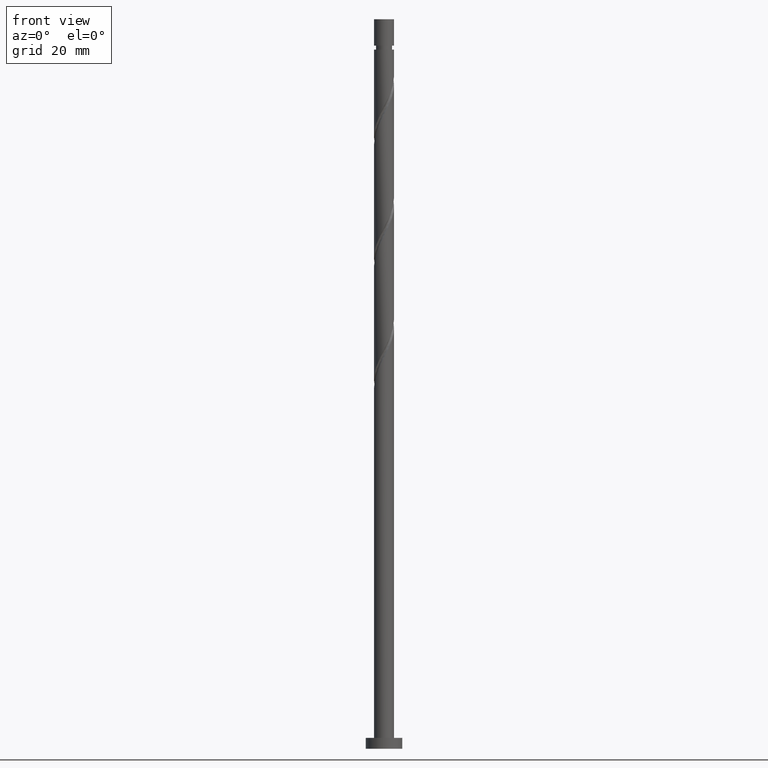
[diagram: clean part render]
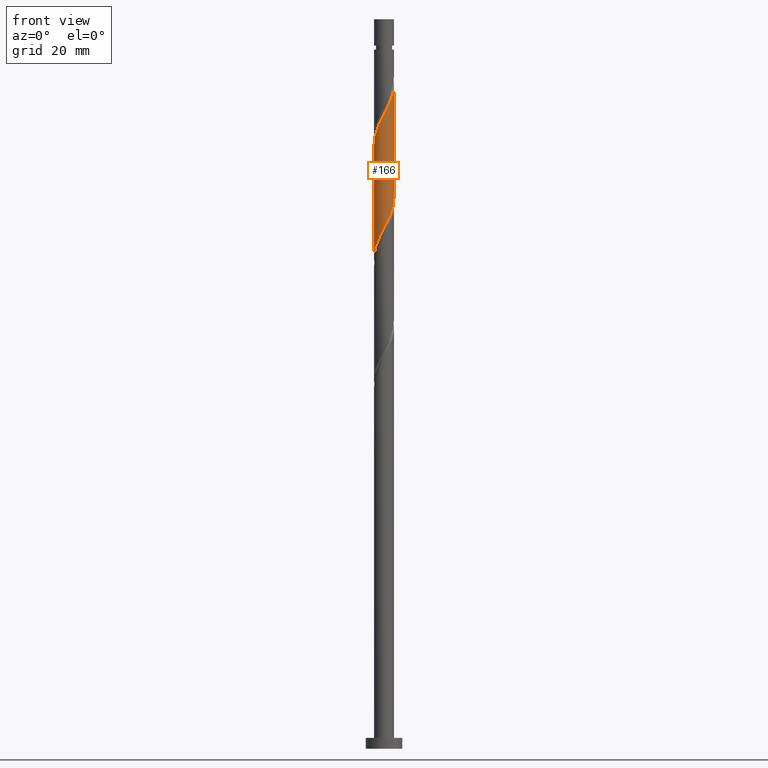
[diagram: same view with one face highlighted and labeled with its STEP entity id]
A machine part, front view. The second image highlights one B-rep face of the part: STEP entity #166.
In plain terms, the highlighted cylindrical surface (edge-blend (fillet) strip) has radius 2.75 mm, axis along (-0, -0, -1).
Its self-contained STEP definition (entity closure, byte-faithful):
#17 = CARTESIAN_POINT ( 'NONE',  ( 2.750000000000002220, -0.2763853991962788581, 150.5134467254357560 ) ) ;
#26 = CARTESIAN_POINT ( 'NONE',  ( -2.492551864551396879, -1.216865369375926598, 136.7888619949704605 ) ) ;
#34 = CARTESIAN_POINT ( 'NONE',  ( 2.060316917994740482, -1.821426418339390008, 147.2055286616372030 ) ) ;
#40 = CARTESIAN_POINT ( 'NONE',  ( -2.750000000000001332, -1.166395186602363557E-14, 134.3802064279583419 ) ) ;
#42 = CARTESIAN_POINT ( 'NONE',  ( -1.518693475112314450, -2.292612075483183354, 170.8166397727483172 ) ) ;
#48 = CARTESIAN_POINT ( 'NONE',  ( -2.695000000000005169, -0.5472430904086424963, 166.6499731060817169 ) ) ;
#84 = LINE ( 'NONE', #666, #1278 ) ;
#124 = VERTEX_POINT ( 'NONE', #1510 ) ;
#160 = VERTEX_POINT ( 'NONE', #40 ) ;
#166 = ADVANCED_FACE ( 'NONE', ( #1684 ), #195, .T. ) ;
#168 = CARTESIAN_POINT ( 'NONE',  ( 0.1924396094106092248, -2.767045919639746554, 174.2888619949704605 ) ) ;
#191 = CARTESIAN_POINT ( 'NONE',  ( 2.750000000000000888, 3.289832577596410225E-15, 151.0468730946250275 ) ) ;
#195 = CYLINDRICAL_SURFACE ( 'NONE', #309, 2.750000000000000000 ) ;
#248 = ORIENTED_EDGE ( 'NONE', *, *, #274, .T. ) ;
#274 = EDGE_CURVE ( 'NONE', #488, #160, #84, .T. ) ;
#299 = CARTESIAN_POINT ( 'NONE',  ( -2.750000000000004441, -1.428086414365705300E-15, 165.5864064508715785 ) ) ;
#302 = CARTESIAN_POINT ( 'NONE',  ( -0.9020465714066749907, -2.622954080360256679, 140.9555286616371745 ) ) ;
#308 = CARTESIAN_POINT ( 'NONE',  ( -0.1689210922673437254, -2.744807035947560259, 173.5944175505261740 ) ) ;
#309 = AXIS2_PLACEMENT_3D ( 'NONE', #616, #1536, #1253 ) ;
#312 = CARTESIAN_POINT ( 'NONE',  ( -2.722568152255369078, -0.5302817939452942886, 135.3999731060816316 ) ) ;
#321 = VERTEX_POINT ( 'NONE', #1159 ) ;
#328 =( BOUNDED_CURVE ( )  B_SPLINE_CURVE ( 2, ( #299, #1232, #48, #604, #595, #1112, #1522, #735, #42, #747, #1255, #1652, #308, #168, #1240, #618, #1539, #341, #1389, #721, #1623, #1737, #1501, #594, #816, #1339, #553 ),
 .UNSPECIFIED., .F., .T. ) 
 B_SPLINE_CURVE_WITH_KNOTS ( ( 3, 2, 2, 2, 2, 2, 2, 2, 2, 2, 2, 2, 2, 3 ),
 ( 0.5545317669814461281, 0.5625000000000000000, 0.5729166666666667407, 0.5833333333333332593, 0.5937500000000000000, 0.6041666666666667407, 0.6145833333333332593, 0.6250000000000000000, 0.6354166666666667407, 0.6458333333333332593, 0.6562500000000000000, 0.6666666666666667407, 0.6770833333333332593, 0.6795317669814460171 ),
 .UNSPECIFIED. ) 
 CURVE ( )  GEOMETRIC_REPRESENTATION_ITEM ( )  RATIONAL_B_SPLINE_CURVE ( ( 0.9062941362546527158, 0.9031415850403567980, 0.9090909090909321533, 0.9013135103398507431, 0.9090909090909321533, 0.9013135103398507431, 0.9090909090909321533, 0.9013135103398507431, 0.9090909090909321533, 0.9013135103398507431, 0.9090909090909321533, 0.9013135103398507431, 0.9090909090909321533, 0.9013135103398507431, 0.9090909090909321533, 0.9013135103398507431, 0.9090909090909321533, 0.9013135103398507431, 0.9090909090909321533, 0.9013135103398507431, 0.9090909090909321533, 0.9013135103398507431, 0.9090909090909321533, 0.9013135103398507431, 0.9090909090909321533, 0.9072628343904260984, 0.9062941362546527158 ) ) 
 REPRESENTATION_ITEM ( '' )  );
#341 = CARTESIAN_POINT ( 'NONE',  ( 1.550180550263815515, -2.300112255140790651, 177.0666397727482888 ) ) ;
#375 = DIRECTION ( 'NONE',  ( -0.000000000000000000, -0.000000000000000000, -1.000000000000000000 ) ) ;
#460 = CARTESIAN_POINT ( 'NONE',  ( 2.695000000000000284, -0.5472430904086429404, 149.9833064394149460 ) ) ;
#473 = CARTESIAN_POINT ( 'NONE',  ( -1.821426418339389341, -2.060316917994740926, 138.8721953283038602 ) ) ;
#482 = CARTESIAN_POINT ( 'NONE',  ( -2.292612075483178913, -1.518693475112311564, 137.4833064394149176 ) ) ;
#488 = VERTEX_POINT ( 'NONE', #830 ) ;
#521 =( BOUNDED_CURVE ( )  B_SPLINE_CURVE ( 2, ( #191, #17, #460, #1375, #611, #1105, #34, #880, #590, #1115, #1680, #986, #1128, #606, #1667, #302, #1675, #1503, #473, #1004, #482, #26, #1533, #312, #1010, #1383, #995 ),
 .UNSPECIFIED., .F., .T. ) 
 B_SPLINE_CURVE_WITH_KNOTS ( ( 3, 2, 2, 2, 2, 2, 2, 2, 2, 2, 2, 2, 2, 3 ),
 ( 0.5545317669814461281, 0.5625000000000000000, 0.5729166666666666297, 0.5833333333333333703, 0.5937500000000000000, 0.6041666666666666297, 0.6145833333333333703, 0.6250000000000000000, 0.6354166666666666297, 0.6458333333333333703, 0.6562500000000000000, 0.6666666666666666297, 0.6770833333333333703, 0.6795317669814462391 ),
 .UNSPECIFIED. ) 
 CURVE ( )  GEOMETRIC_REPRESENTATION_ITEM ( )  RATIONAL_B_SPLINE_CURVE ( ( 0.9062941362546469426, 0.9031415850403509138, 0.9090909090909264911, 0.9013135103398449699, 0.9090909090909264911, 0.9013135103398449699, 0.9090909090909264911, 0.9013135103398449699, 0.9090909090909264911, 0.9013135103398449699, 0.9090909090909264911, 0.9013135103398449699, 0.9090909090909264911, 0.9013135103398449699, 0.9090909090909264911, 0.9013135103398449699, 0.9090909090909264911, 0.9013135103398449699, 0.9090909090909264911, 0.9013135103398449699, 0.9090909090909264911, 0.9013135103398449699, 0.9090909090909264911, 0.9013135103398449699, 0.9090909090909264911, 0.9072628343904203252, 0.9062941362546469426 ) ) 
 REPRESENTATION_ITEM ( '' )  );
#553 = CARTESIAN_POINT ( 'NONE',  ( 2.750000000000004441, -2.841219044287791350E-16, 182.2530731175382357 ) ) ;
#590 = CARTESIAN_POINT ( 'NONE',  ( 1.518693475112310676, -2.292612075483180689, 145.8166397727482888 ) ) ;
#594 = CARTESIAN_POINT ( 'NONE',  ( 2.722568152255372631, -0.5302817939452981744, 181.2333064394149744 ) ) ;
#595 = CARTESIAN_POINT ( 'NONE',  ( -2.461533167750526552, -1.226113560835245808, 168.0388619949705173 ) ) ;
#600 = ORIENTED_EDGE ( 'NONE', *, *, #1717, .F. ) ;
#604 = CARTESIAN_POINT ( 'NONE',  ( -2.622954080360260676, -0.9020465714066742136, 167.3444175505260318 ) ) ;
#606 = CARTESIAN_POINT ( 'NONE',  ( -0.1924396094106113064, -2.767045919639743445, 142.3444175505259750 ) ) ;
#611 = CARTESIAN_POINT ( 'NONE',  ( 2.461533167750521223, -1.226113560835246474, 148.5944175505260603 ) ) ;
#616 = CARTESIAN_POINT ( 'NONE',  ( 0.000000000000000000, 0.000000000000000000, 200.0000000000000000 ) ) ;
#618 = CARTESIAN_POINT ( 'NONE',  ( 0.9020465714066741025, -2.622954080360260676, 175.6777508838593747 ) ) ;
#635 = EDGE_CURVE ( 'NONE', #321, #124, #1022, .T. ) ;
#666 = CARTESIAN_POINT ( 'NONE',  ( -2.750000000000000000, 0.000000000000000000, 200.0000000000000000 ) ) ;
#721 = CARTESIAN_POINT ( 'NONE',  ( 2.092672286414964056, -1.820521580848699195, 178.4555286616371745 ) ) ;
#735 = CARTESIAN_POINT ( 'NONE',  ( -1.820521580848699195, -2.092672286414964056, 170.1221953283038033 ) ) ;
#747 = CARTESIAN_POINT ( 'NONE',  ( -1.216865369375930817, -2.492551864551399099, 171.5110842171926890 ) ) ;
#777 = CARTESIAN_POINT ( 'NONE',  ( 2.750000000000000000, 3.367778697655221012E-16, 200.0000000000000000 ) ) ;
#816 = CARTESIAN_POINT ( 'NONE',  ( 2.744807035947560259, -0.1689210922673452520, 181.9277508838594315 ) ) ;
#830 = CARTESIAN_POINT ( 'NONE',  ( -2.750000000000004441, -1.428086414365705300E-15, 165.5864064508715785 ) ) ;
#866 = ORIENTED_EDGE ( 'NONE', *, *, #939, .F. ) ;
#880 = CARTESIAN_POINT ( 'NONE',  ( 1.820521580848694976, -2.092672286414962723, 146.5110842171926890 ) ) ;
#939 = EDGE_CURVE ( 'NONE', #488, #321, #328, .T. ) ;
#958 = ORIENTED_EDGE ( 'NONE', *, *, #635, .F. ) ;
#986 = CARTESIAN_POINT ( 'NONE',  ( 0.5302817939452937335, -2.722568152255369078, 143.7333064394148892 ) ) ;
#995 = CARTESIAN_POINT ( 'NONE',  ( -2.750000000000001332, -1.166395186602363557E-14, 134.3802064279583419 ) ) ;
#1004 = CARTESIAN_POINT ( 'NONE',  ( -2.092672286414962723, -1.820521580848694976, 138.1777508838593747 ) ) ;
#1010 = CARTESIAN_POINT ( 'NONE',  ( -2.744807035947557150, -0.1689210922673420323, 134.7055286616371461 ) ) ;
#1022 = LINE ( 'NONE', #777, #1430 ) ;
#1105 = CARTESIAN_POINT ( 'NONE',  ( 2.300112255140785766, -1.550180550263815960, 147.8999731060816316 ) ) ;
#1112 = CARTESIAN_POINT ( 'NONE',  ( -2.300112255140790207, -1.550180550263816182, 168.7333064394148892 ) ) ;
#1115 = CARTESIAN_POINT ( 'NONE',  ( 1.216865369375926598, -2.492551864551396879, 145.1221953283038602 ) ) ;
#1128 = CARTESIAN_POINT ( 'NONE',  ( 0.1689210922673411996, -2.744807035947557150, 143.0388619949705173 ) ) ;
#1159 = CARTESIAN_POINT ( 'NONE',  ( 2.750000000000004441, -2.841219044287790857E-16, 182.2530731175382357 ) ) ;
#1177 = DIRECTION ( 'NONE',  ( -0.000000000000000000, -0.000000000000000000, -1.000000000000000000 ) ) ;
#1199 = EDGE_LOOP ( 'NONE', ( #958, #866, #248, #600 ) ) ;
#1232 = CARTESIAN_POINT ( 'NONE',  ( -2.750000000000005329, -0.2763853991962805789, 166.1198328200608501 ) ) ;
#1240 = CARTESIAN_POINT ( 'NONE',  ( 0.5472430904086423853, -2.695000000000005169, 174.9833064394150028 ) ) ;
#1253 = DIRECTION ( 'NONE',  ( -1.000000000000000000, 0.000000000000000000, 0.000000000000000000 ) ) ;
#1255 = CARTESIAN_POINT ( 'NONE',  ( -0.8735735816606143844, -2.607560008403386753, 172.2055286616371745 ) ) ;
#1278 = VECTOR ( 'NONE', #1177, 1000.000000000000000 ) ;
#1339 = CARTESIAN_POINT ( 'NONE',  ( 2.750000000000003109, -0.08454036705861110723, 182.0899094295101008 ) ) ;
#1375 = CARTESIAN_POINT ( 'NONE',  ( 2.622954080360255791, -0.9020465714066763230, 149.2888619949704605 ) ) ;
#1383 = CARTESIAN_POINT ( 'NONE',  ( -2.750000000000000888, -0.08454036705860309975, 134.5433701159864768 ) ) ;
#1389 = CARTESIAN_POINT ( 'NONE',  ( 1.821426418339390452, -2.060316917994745367, 177.7610842171927743 ) ) ;
#1430 = VECTOR ( 'NONE', #375, 1000.000000000000000 ) ;
#1501 = CARTESIAN_POINT ( 'NONE',  ( 2.607560008403387641, -0.8735735816606146065, 180.5388619949705742 ) ) ;
#1503 = CARTESIAN_POINT ( 'NONE',  ( -1.550180550263814627, -2.300112255140786655, 139.5666397727482604 ) ) ;
#1510 = CARTESIAN_POINT ( 'NONE',  ( 2.750000000000000888, 3.289832577596409831E-15, 151.0468730946250275 ) ) ;
#1522 = CARTESIAN_POINT ( 'NONE',  ( -2.060316917994744479, -1.821426418339390896, 169.4277508838594031 ) ) ;
#1533 = CARTESIAN_POINT ( 'NONE',  ( -2.607560008403384089, -0.8735735816606111648, 136.0944175505261171 ) ) ;
#1536 = DIRECTION ( 'NONE',  ( -0.000000000000000000, -0.000000000000000000, -1.000000000000000000 ) ) ;
#1539 = CARTESIAN_POINT ( 'NONE',  ( 1.226113560835245364, -2.461533167750526552, 176.3721953283038317 ) ) ;
#1623 = CARTESIAN_POINT ( 'NONE',  ( 2.292612075483182466, -1.518693475112315561, 179.1499731060816600 ) ) ;
#1652 = CARTESIAN_POINT ( 'NONE',  ( -0.5302817939452966201, -2.722568152255372631, 172.8999731060816600 ) ) ;
#1667 = CARTESIAN_POINT ( 'NONE',  ( -0.5472430904086426073, -2.695000000000000284, 141.6499731060816316 ) ) ;
#1675 = CARTESIAN_POINT ( 'NONE',  ( -1.226113560835245142, -2.461533167750521223, 140.2610842171927175 ) ) ;
#1680 = CARTESIAN_POINT ( 'NONE',  ( 0.8735735816606108317, -2.607560008403384089, 144.4277508838594315 ) ) ;
#1684 = FACE_OUTER_BOUND ( 'NONE', #1199, .T. ) ;
#1717 = EDGE_CURVE ( 'NONE', #124, #160, #521, .T. ) ;
#1737 = CARTESIAN_POINT ( 'NONE',  ( 2.492551864551399099, -1.216865369375930817, 179.8444175505260034 ) ) ;